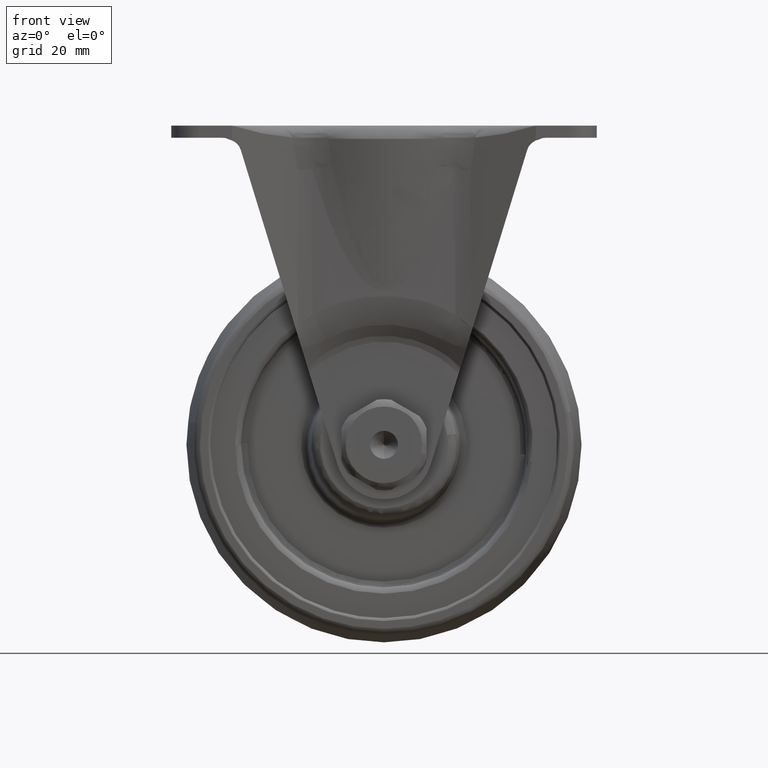
[diagram: clean part render]
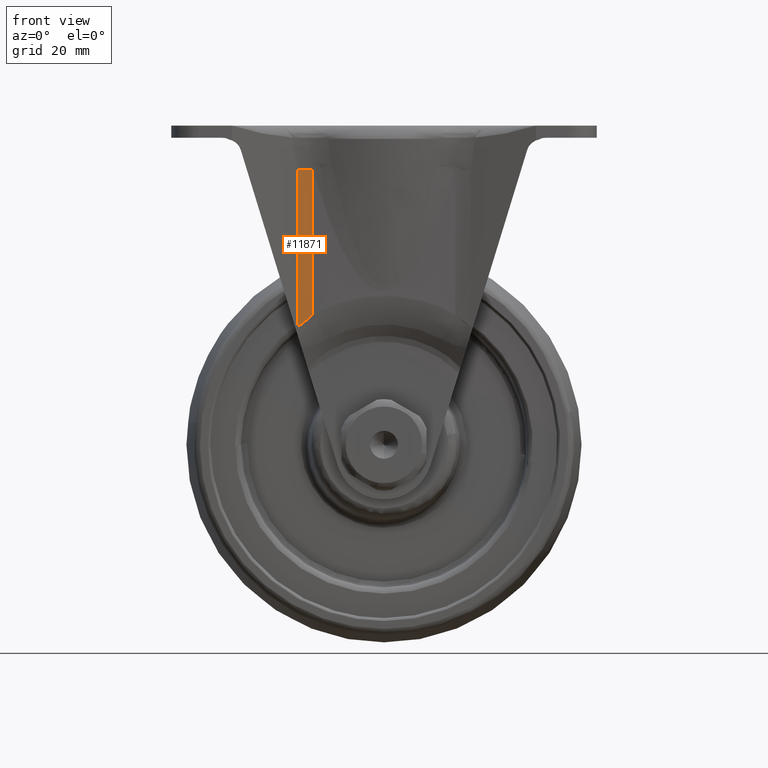
[diagram: same view with one face highlighted and labeled with its STEP entity id]
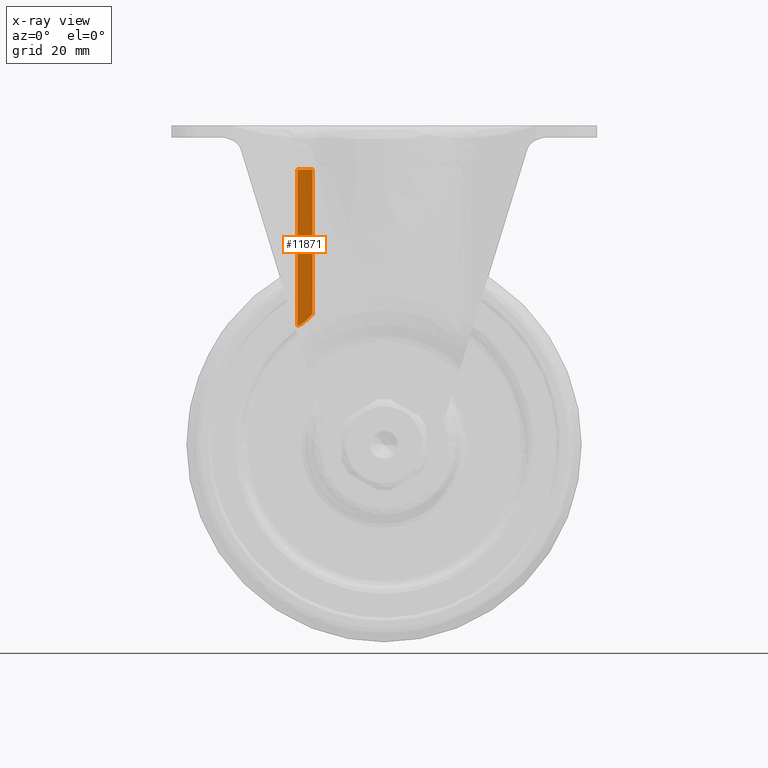
[diagram: x-ray of the same camera — body ghosted, the highlighted face saturated]
A machine part, front view. The second image highlights one B-rep face of the part: STEP entity #11871.
The next image is the same camera in x-ray: the body ghosted, the highlighted face saturated — about 0% of this face is hidden behind the body in this view.
In plain terms, the highlighted face is a freeform B-spline surface patch.
Its self-contained STEP definition (entity closure, byte-faithful):
#8331=CARTESIAN_POINT('',(-11.749631796918120,-20.406240285580949,45.268858470410002));
#8332=VERTEX_POINT('',#8331);
#8333=CARTESIAN_POINT('',(-14.250059904178240,-20.723892466977048,45.268858470410002));
#8334=VERTEX_POINT('',#8333);
#8335=CARTESIAN_POINT('',(-11.749631796918120,-20.406240285580949,45.268858470410002));
#8336=CARTESIAN_POINT('',(-13.020022977027587,-20.406240285580949,45.268858470409995));
#8337=CARTESIAN_POINT('',(-14.250059904178240,-20.723892466977059,45.268858470410002));
#8345=(BOUNDED_CURVE()B_SPLINE_CURVE(2,(#8335,#8336,#8337),.UNSPECIFIED.,.F.,.U.)CURVE()GEOMETRIC_REPRESENTATION_ITEM()QUASI_UNIFORM_CURVE()RATIONAL_B_SPLINE_CURVE((1.0,0.992026910386102,1.0))REPRESENTATION_ITEM(''));
#8346=EDGE_CURVE('',#8332,#8334,#8345,.T.);
#11534=CARTESIAN_POINT('',(-11.749631796918120,-20.406240285580949,21.499098877672601));
#11535=VERTEX_POINT('',#11534);
#11670=CARTESIAN_POINT('',(-14.250059904178240,-20.723892466977048,19.479886328267099));
#11671=VERTEX_POINT('',#11670);
#11672=CARTESIAN_POINT('',(-14.250059904178240,-20.723892466977048,19.479886328267099));
#11673=CARTESIAN_POINT('',(-14.127637062481250,-20.692277251320188,19.534086887882012));
#11674=CARTESIAN_POINT('',(-14.008195678791690,-20.663895700173530,19.595387170931520));
#11675=CARTESIAN_POINT('',(-13.832439325256200,-20.625365579951168,19.695601877095910));
#11676=CARTESIAN_POINT('',(-13.774321095642630,-20.613179347464119,19.730463030426129));
#11677=CARTESIAN_POINT('',(-13.659825222956190,-20.590203897651229,19.802195723338059));
#11678=CARTESIAN_POINT('',(-13.603400651440420,-20.579402123652649,19.839087299330089));
#11679=CARTESIAN_POINT('',(-13.324853684336899,-20.528487928236171,20.028011403571309));
#11680=CARTESIAN_POINT('',(-13.113193764330720,-20.497498215220020,20.193119422470460));
#11681=CARTESIAN_POINT('',(-12.703802571414430,-20.449733428805740,20.540986897347850));
#11682=CARTESIAN_POINT('',(-12.506194034381251,-20.433034378736821,20.723896086940119));
#11683=CARTESIAN_POINT('',(-12.120945531287839,-20.411274123050230,21.102520131358549));
#11684=CARTESIAN_POINT('',(-11.933349691279989,-20.406240285580949,21.298288822745238));
#11685=CARTESIAN_POINT('',(-11.749631796918100,-20.406240285580949,21.499098877672601));
#11686=B_SPLINE_CURVE_WITH_KNOTS('',3,(#11672,#11673,#11674,#11675,#11676,#11677,#11678,#11679,#11680,#11681,#11682,#11683,#11684,#11685),.UNSPECIFIED.,.F.,.U.,(4,2,2,2,2,2,4),(0.0,0.125000000000000,0.187500000000000,0.250000000000000,0.500000000000000,0.750000000000000,1.0),.UNSPECIFIED.);
#11687=EDGE_CURVE('',#11671,#11535,#11686,.T.);
#11843=CARTESIAN_POINT('',(-14.371535212315770,-20.756078500391741,18.835162024713533));
#11844=CARTESIAN_POINT('',(-14.371535212315770,-20.756078500391741,45.929700881552407));
#11845=CARTESIAN_POINT('',(-13.021977115392858,-20.389409934375536,18.835162024713522));
#11846=CARTESIAN_POINT('',(-13.021977115392858,-20.389409934375536,45.929700881552407));
#11847=CARTESIAN_POINT('',(-11.623605823167392,-20.407034444418358,18.835162024713529));
#11848=CARTESIAN_POINT('',(-11.623605823167392,-20.407034444418358,45.929700881552414));
#11856=(BOUNDED_SURFACE()B_SPLINE_SURFACE(1,2,((#11843,#11845,#11847),(#11844,#11846,#11848)),.UNSPECIFIED.,.F.,.F.,.U.)B_SPLINE_SURFACE_WITH_KNOTS((2,2),(3,3),(0.0,27.094538856838881),(0.0,2.783419811200235),.UNSPECIFIED.)GEOMETRIC_REPRESENTATION_ITEM()RATIONAL_B_SPLINE_SURFACE(((0.998046855020953,0.986941779540842,0.995047639290982),(0.998046855020953,0.986941779540842,0.995047639290982)))REPRESENTATION_ITEM('')SURFACE());
#11857=CARTESIAN_POINT('',(-11.749631796918120,-20.406240285580949,45.268858470410002));
#11858=CARTESIAN_POINT('',(-11.749631796918120,-20.406240285580949,21.499098877672601));
#11859=QUASI_UNIFORM_CURVE('',1,(#11857,#11858),.UNSPECIFIED.,.F.,.U.);
#11860=EDGE_CURVE('',#8332,#11535,#11859,.T.);
#11861=ORIENTED_EDGE('',*,*,#11860,.F.);
#11862=ORIENTED_EDGE('',*,*,#8346,.T.);
#11863=CARTESIAN_POINT('',(-14.250059904178240,-20.723892466977048,19.479886328267099));
#11864=CARTESIAN_POINT('',(-14.250059904178240,-20.723892466977048,45.268858470410002));
#11865=QUASI_UNIFORM_CURVE('',1,(#11863,#11864),.UNSPECIFIED.,.F.,.U.);
#11866=EDGE_CURVE('',#11671,#8334,#11865,.T.);
#11867=ORIENTED_EDGE('',*,*,#11866,.F.);
#11868=ORIENTED_EDGE('',*,*,#11687,.T.);
#11869=EDGE_LOOP('',(#11861,#11862,#11867,#11868));
#11870=FACE_OUTER_BOUND('',#11869,.T.);
#11871=ADVANCED_FACE('',(#11870),#11856,.F.);